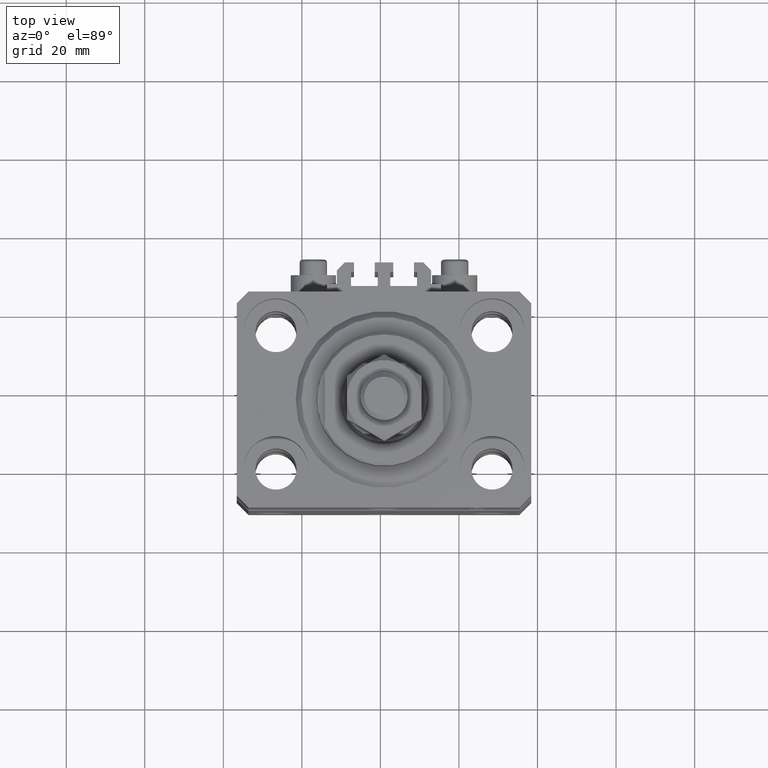
[diagram: clean part render]
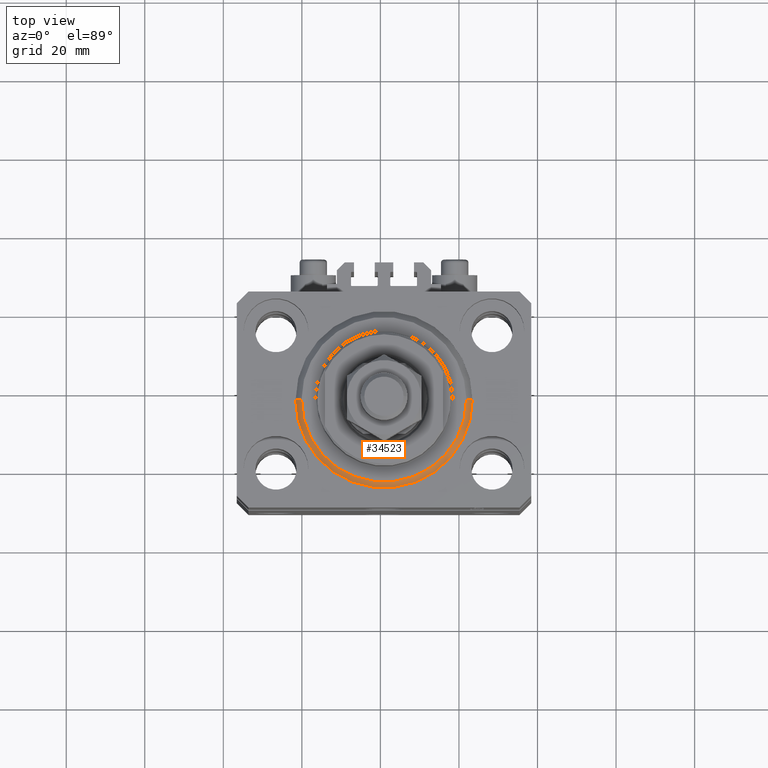
[diagram: same view with one face highlighted and labeled with its STEP entity id]
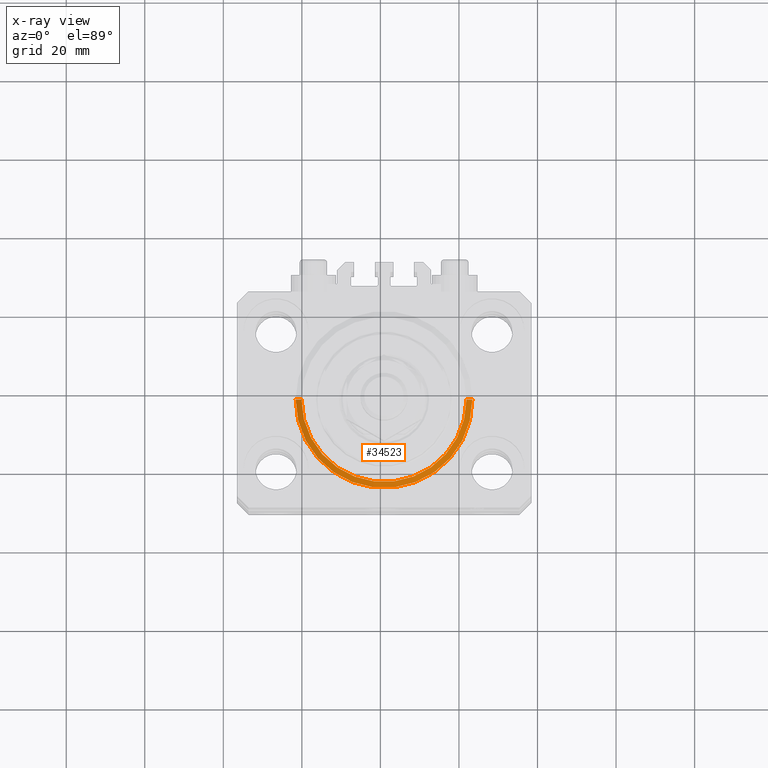
[diagram: x-ray of the same camera — body ghosted, the highlighted face saturated]
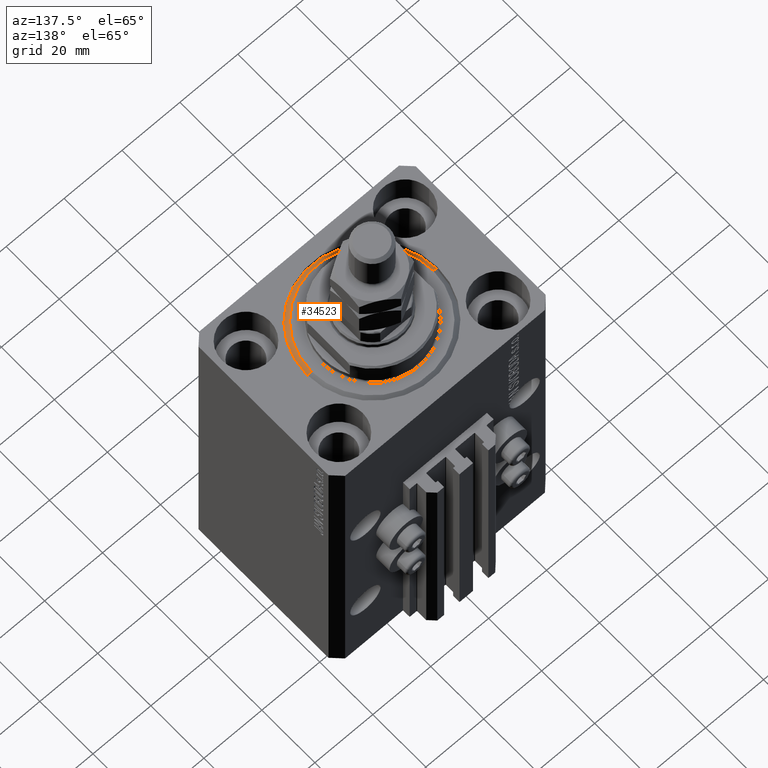
[diagram: same view with one face highlighted and labeled with its STEP entity id]
A machine part, top view. The second image highlights one B-rep face of the part: STEP entity #34523.
The next image is the same camera in x-ray: the body ghosted, the highlighted face saturated — about 0% of this face is hidden behind the body in this view.
A second angle (auxiliary view) of the same face is appended — the face is thin or edge-on in the first view.
In plain terms, the highlighted conical surface has half-angle 45 deg.
Its self-contained STEP definition (entity closure, byte-faithful):
#4954 = VERTEX_POINT ( 'NONE', #9058 ) ;
#5316 = AXIS2_PLACEMENT_3D ( 'NONE', #44644, #21917, #18447 ) ;
#6553 = DIRECTION ( 'NONE',  ( 0.7071067811865500152, 0.000000000000000000, 0.7071067811865451302 ) ) ;
#8998 = DIRECTION ( 'NONE',  ( 1.000000000000000000, 0.000000000000000000, 0.000000000000000000 ) ) ;
#9058 = CARTESIAN_POINT ( 'NONE',  ( -22.50000000000000355, 0.000000000000000000, 1.500000000000001332 ) ) ;
#10728 = VERTEX_POINT ( 'NONE', #32136 ) ;
#12025 = ORIENTED_EDGE ( 'NONE', *, *, #45649, .F. ) ;
#13482 = CIRCLE ( 'NONE', #32443, 22.50000000000000355 ) ;
#13829 = CARTESIAN_POINT ( 'NONE',  ( 22.50000000000000355, 2.755455298081545172E-15, 1.500000000000001332 ) ) ;
#14207 = LINE ( 'NONE', #40433, #19828 ) ;
#15167 = EDGE_CURVE ( 'NONE', #10728, #4954, #23696, .T. ) ;
#15296 = CARTESIAN_POINT ( 'NONE',  ( 0.000000000000000000, 0.000000000000000000, 1.500000000000001332 ) ) ;
#16015 = ORIENTED_EDGE ( 'NONE', *, *, #15167, .F. ) ;
#16486 = VECTOR ( 'NONE', #42955, 1000.000000000000114 ) ;
#18447 = DIRECTION ( 'NONE',  ( 1.000000000000000000, 0.000000000000000000, 0.000000000000000000 ) ) ;
#19742 = CARTESIAN_POINT ( 'NONE',  ( -22.50000000000000355, 2.755455298081545172E-15, 1.500000000000001332 ) ) ;
#19828 = VECTOR ( 'NONE', #6553, 1000.000000000000114 ) ;
#21917 = DIRECTION ( 'NONE',  ( -0.000000000000000000, -0.000000000000000000, 1.000000000000000000 ) ) ;
#22188 = AXIS2_PLACEMENT_3D ( 'NONE', #24354, #39400, #8998 ) ;
#23696 = LINE ( 'NONE', #19742, #16486 ) ;
#24354 = CARTESIAN_POINT ( 'NONE',  ( 0.000000000000000000, 0.000000000000000000, 0.000000000000000000 ) ) ;
#25173 = VERTEX_POINT ( 'NONE', #13829 ) ;
#25498 = DIRECTION ( 'NONE',  ( 1.000000000000000000, 0.000000000000000000, 0.000000000000000000 ) ) ;
#27674 = ORIENTED_EDGE ( 'NONE', *, *, #44493, .F. ) ;
#30050 = CIRCLE ( 'NONE', #22188, 20.99999999999998934 ) ;
#32136 = CARTESIAN_POINT ( 'NONE',  ( -20.99999999999998934, 2.663606788145492628E-15, 0.000000000000000000 ) ) ;
#32268 = CARTESIAN_POINT ( 'NONE',  ( 20.99999999999998934, 0.000000000000000000, 0.000000000000000000 ) ) ;
#32443 = AXIS2_PLACEMENT_3D ( 'NONE', #15296, #45464, #25498 ) ;
#34523 = ADVANCED_FACE ( 'NONE', ( #44887 ), #38458, .T. ) ;
#38458 = CONICAL_SURFACE ( 'NONE', #5316, 22.50000000000000355, 0.7853981633974517207 ) ;
#39400 = DIRECTION ( 'NONE',  ( -0.000000000000000000, -0.000000000000000000, -1.000000000000000000 ) ) ;
#39414 = VERTEX_POINT ( 'NONE', #32268 ) ;
#39415 = ORIENTED_EDGE ( 'NONE', *, *, #41791, .T. ) ;
#40433 = CARTESIAN_POINT ( 'NONE',  ( 22.50000000000000355, 0.000000000000000000, 1.500000000000001332 ) ) ;
#41791 = EDGE_CURVE ( 'NONE', #39414, #25173, #14207, .T. ) ;
#42955 = DIRECTION ( 'NONE',  ( -0.7071067811865500152, 8.659560562354963673E-17, 0.7071067811865451302 ) ) ;
#44493 = EDGE_CURVE ( 'NONE', #39414, #10728, #30050, .T. ) ;
#44644 = CARTESIAN_POINT ( 'NONE',  ( 0.000000000000000000, 0.000000000000000000, 1.500000000000001332 ) ) ;
#44887 = FACE_OUTER_BOUND ( 'NONE', #47049, .T. ) ;
#45464 = DIRECTION ( 'NONE',  ( -0.000000000000000000, -0.000000000000000000, 1.000000000000000000 ) ) ;
#45649 = EDGE_CURVE ( 'NONE', #4954, #25173, #13482, .T. ) ;
#47049 = EDGE_LOOP ( 'NONE', ( #16015, #27674, #39415, #12025 ) ) ;